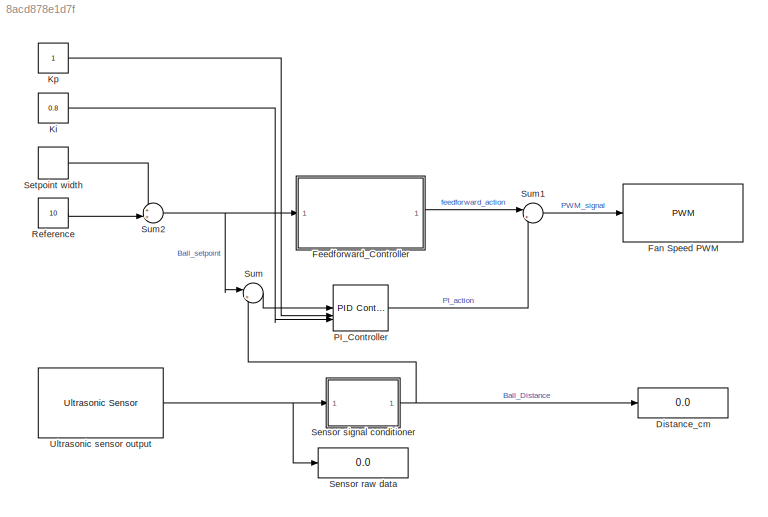
MODEL slx_8acd878e1d7f
KIND model
CONFIG AbsTol = auto
CONFIG EnableMultiTasking = on
CONFIG FixedStep = 0.1
CONFIG MaxStep = auto
CONFIG MinStep = auto
CONFIG RelTol = 1e-3
CONFIG SampleTimeConstraint = Unconstrained
CONFIG SolverName = FixedStepDiscrete
CONFIG StartTime = 0.0
CONFIG StopTime = inf
BLOCK [Display] Distance_cm
  Decimation = 1
BLOCK [Reference] Fan Speed PWM  REF=arduinolib/PWM
  SourceBlock = arduinolib/PWM
  SourceType = Arduino PWM
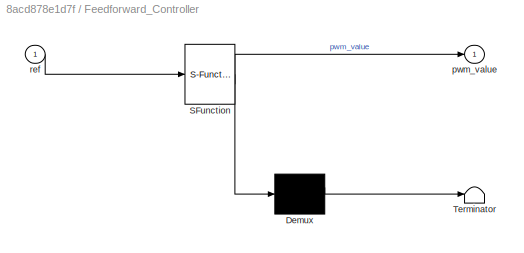
BLOCK [SubSystem] Feedforward_Controller
  ErrorFcn = Stateflow.Translate.translate
  PermitHierarchicalResolution = ExplicitOnly
  SFBlockType = MATLAB Function
  TreatAsAtomicUnit = on
BLOCK [Demux] Feedforward_Controller/ Demux 
  Outputs = 1
BLOCK [S-Function] Feedforward_Controller/ SFunction 
  EnableBusSupport = on
  FunctionName = sf_sfun
  PortCounts = [1 2]
  SFcnIsStateOwnerBlock = off
  SFunctionDeploymentMode = off
  Tag = Stateflow S-Function 1
BLOCK [Terminator] Feedforward_Controller/ Terminator 
BLOCK [Outport] Feedforward_Controller/pwm_value
BLOCK [Inport] Feedforward_Controller/ref
BLOCK [Constant] Ki
  Value = 0.8
BLOCK [Constant] Kp
BLOCK [Reference] PI_Controller  REF=slpidlib/PID Controller
  LibrarySourceBlock = simulink/Discrete/Discrete PID Controller
  SourceBlock = slpidlib/PID Controller
  SourceType = PID 1dof
BLOCK [Constant] Reference
  Value = 10
BLOCK [Display] Sensor raw data
  Decimation = 1
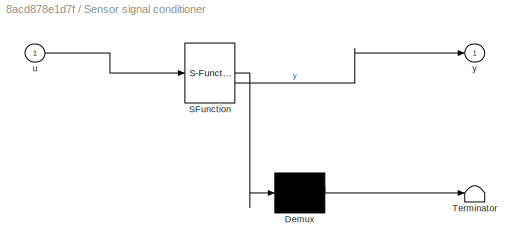
BLOCK [SubSystem] Sensor signal conditioner
  ErrorFcn = Stateflow.Translate.translate
  PermitHierarchicalResolution = ExplicitOnly
  SFBlockType = MATLAB Function
  TreatAsAtomicUnit = on
BLOCK [Demux] Sensor signal conditioner/ Demux 
  Outputs = 1
BLOCK [S-Function] Sensor signal conditioner/ SFunction 
  EnableBusSupport = on
  FunctionName = sf_sfun
  PortCounts = [1 2]
  SFcnIsStateOwnerBlock = off
  SFunctionDeploymentMode = off
  Tag = Stateflow S-Function 2
BLOCK [Terminator] Sensor signal conditioner/ Terminator 
BLOCK [Inport] Sensor signal conditioner/u
BLOCK [Outport] Sensor signal conditioner/y
BLOCK [DiscretePulseGenerator] Setpoint width
  Amplitude = 10
  Period = 20
  PulseType = Time based
  PulseWidth = 50
BLOCK [Sum] Sum
  Inputs = |+-
BLOCK [Sum] Sum1
  Inputs = |++
BLOCK [Sum] Sum2
  Inputs = ++|
BLOCK [Reference] Ultrasonic sensor output  REF=arduinosensorlib/Ultrasonic Sensor
  SourceBlock = arduinosensorlib/Ultrasonic Sensor
  SourceType = Arduino Ultrasonic Sensor
LINE Feedforward_Controller:1 -> Sum1:1
LINE Ki:1 -> PI_Controller:3
LINE Kp:1 -> PI_Controller:2
LINE PI_Controller:1 -> Sum1:2
LINE Reference:1 -> Sum2:2
NET Sensor signal conditioner:1 -> Distance_cm:1, Sum:2
LINE Setpoint width:1 -> Sum2:1
LINE Sum1:1 -> Fan Speed PWM:1
NET Sum2:1 -> Feedforward_Controller:1, Sum:1
LINE Sum:1 -> PI_Controller:1
NET Ultrasonic sensor output:1 -> Sensor raw data:1, Sensor signal conditioner:1
note: NET lines group one-source signal fan-out (src -> all destinations, sorted); 1:1 wires keep LINE
CHART Sensor signal conditioner states=1 transitions=1
  STATE_LABEL 'eML_blk_kernel()'
  STATE_LABEL 'SCRIPT:\nfunction y = fcn(u)\n\nMAX_DIST = 30;\n\ny=MAX_DIST-(u*100);'
CHART Feedforward_Controller states=1 transitions=1
  STATE_LABEL 'eML_blk_kernel()'
  STATE_LABEL 'SCRIPT:\nfunction pwm_value = fcn(ref)\n\n% Values for the lineal regression obtained in P5\na=0.2678;\nb=-19.218;\n\n% Compute the value for the PWM signal with lineal regression\npwm_value=a*ref+b;\n'
CHART  states=0 transitions=0
CHART  states=0 transitions=0
